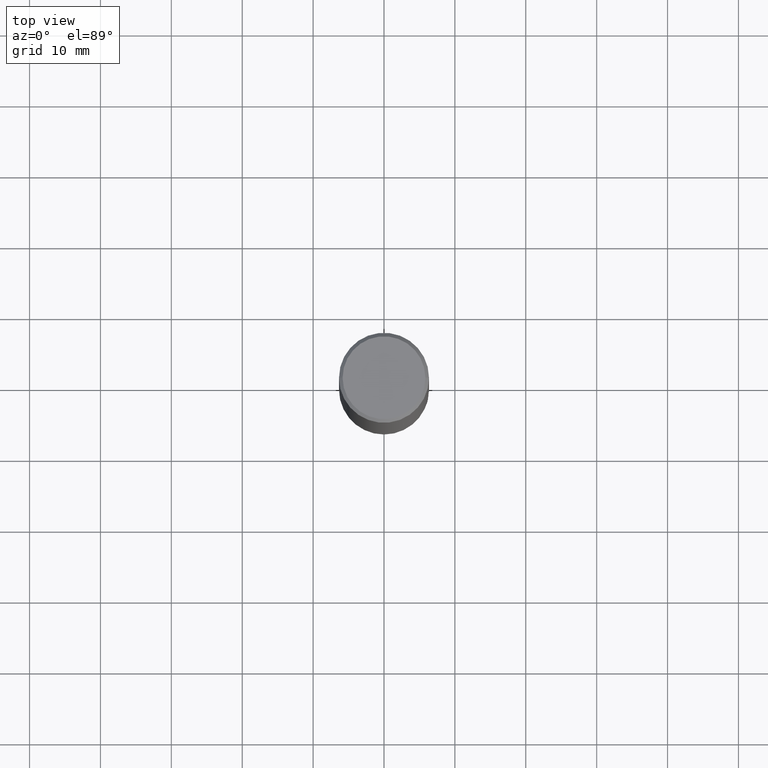
[diagram: clean part render]
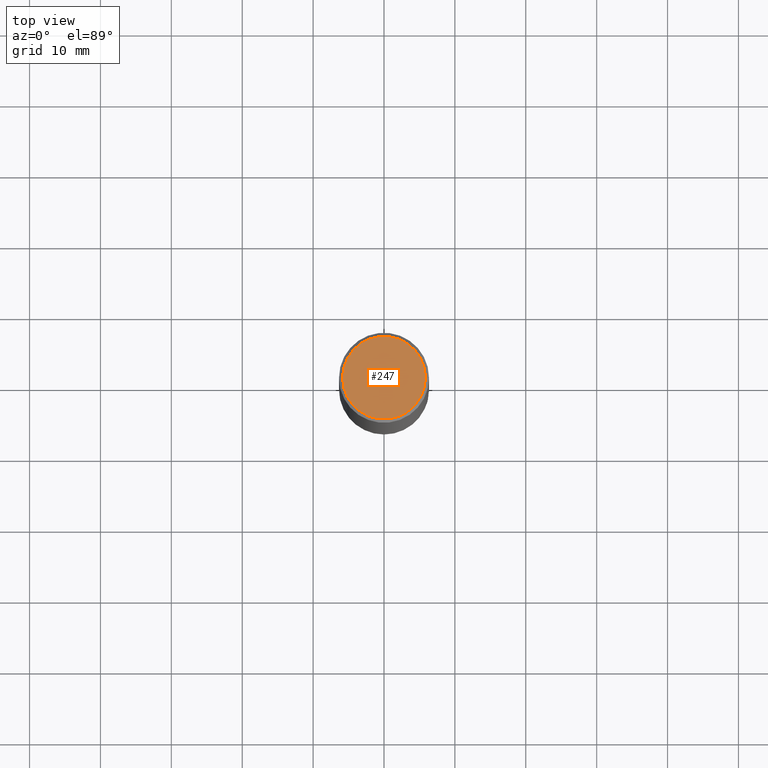
[diagram: same view with one face highlighted and labeled with its STEP entity id]
A machine part, top view. The second image highlights one B-rep face of the part: STEP entity #247.
In plain terms, the highlighted planar face has unit normal (0, -0, -1).
Its self-contained STEP definition (entity closure, byte-faithful):
#6 = CIRCLE ( 'NONE', #279, 0.2299999999999999267 ) ;
#35 = FACE_OUTER_BOUND ( 'NONE', #374, .T. ) ;
#41 = DIRECTION ( 'NONE',  ( 2.438088387897960049E-29, -3.491481338843145188E-15, -1.000000000000000000 ) ) ;
#69 = AXIS2_PLACEMENT_3D ( 'NONE', #132, #256, #351 ) ;
#103 = CARTESIAN_POINT ( 'NONE',  ( 0.2299999999999999267, -1.681434332853598617E-15, 5.122214988121642930E-17 ) ) ;
#132 = CARTESIAN_POINT ( 'NONE',  ( -1.252621697202263706E-45, 1.788411804456536750E-31, 5.122214988120493535E-17 ) ) ;
#141 = VERTEX_POINT ( 'NONE', #412 ) ;
#146 = EDGE_CURVE ( 'NONE', #342, #141, #331, .T. ) ;
#165 = CARTESIAN_POINT ( 'NONE',  ( 1.606081415867840870E-15, 0.2299999999999999267, -7.774296329933208332E-16 ) ) ;
#170 = DIRECTION ( 'NONE',  ( -1.000000000000000000, 6.982962677686265922E-15, -4.876176775795935793E-29 ) ) ;
#177 = PLANE ( 'NONE',  #223 ) ;
#201 = ORIENTED_EDGE ( 'NONE', *, *, #401, .T. ) ;
#223 = AXIS2_PLACEMENT_3D ( 'NONE', #165, #41, #170 ) ;
#247 = ADVANCED_FACE ( 'NONE', ( #35 ), #177, .F. ) ;
#256 = DIRECTION ( 'NONE',  ( -2.445468806185136597E-29, 3.491481338843145583E-15, 1.000000000000000000 ) ) ;
#279 = AXIS2_PLACEMENT_3D ( 'NONE', #367, #310, #309 ) ;
#309 = DIRECTION ( 'NONE',  ( 1.000000000000000000, -6.982962677686267499E-15, 4.875813741439101456E-29 ) ) ;
#310 = DIRECTION ( 'NONE',  ( -2.445468806185136597E-29, 3.491481338843145583E-15, 1.000000000000000000 ) ) ;
#326 = ORIENTED_EDGE ( 'NONE', *, *, #146, .T. ) ;
#331 = CIRCLE ( 'NONE', #69, 0.2299999999999999267 ) ;
#342 = VERTEX_POINT ( 'NONE', #103 ) ;
#351 = DIRECTION ( 'NONE',  ( 1.000000000000000000, -6.982962677686267499E-15, 4.875813741439101456E-29 ) ) ;
#367 = CARTESIAN_POINT ( 'NONE',  ( -1.252621697202263706E-45, 1.788411804456536750E-31, 5.122214988120493535E-17 ) ) ;
#374 = EDGE_LOOP ( 'NONE', ( #201, #326 ) ) ;
#401 = EDGE_CURVE ( 'NONE', #141, #342, #6, .T. ) ;
#412 = CARTESIAN_POINT ( 'NONE',  ( -0.2299999999999999267, 1.640996229256272519E-15, 5.122214988119358314E-17 ) ) ;